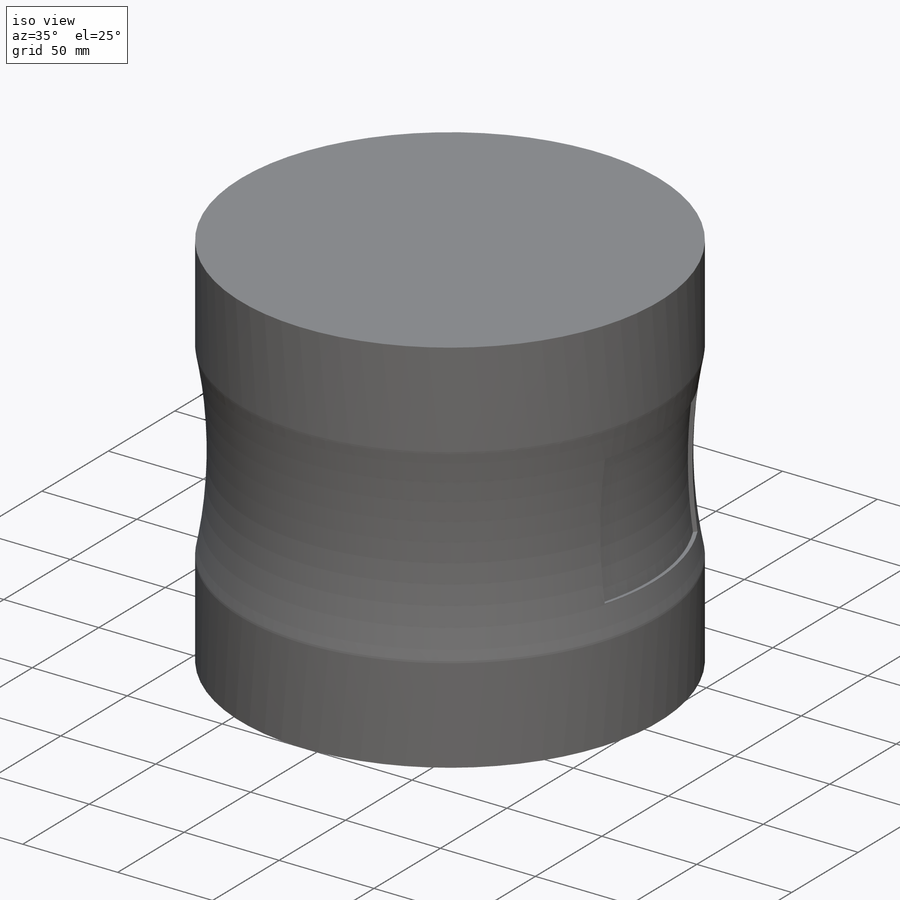
[diagram: iso view]
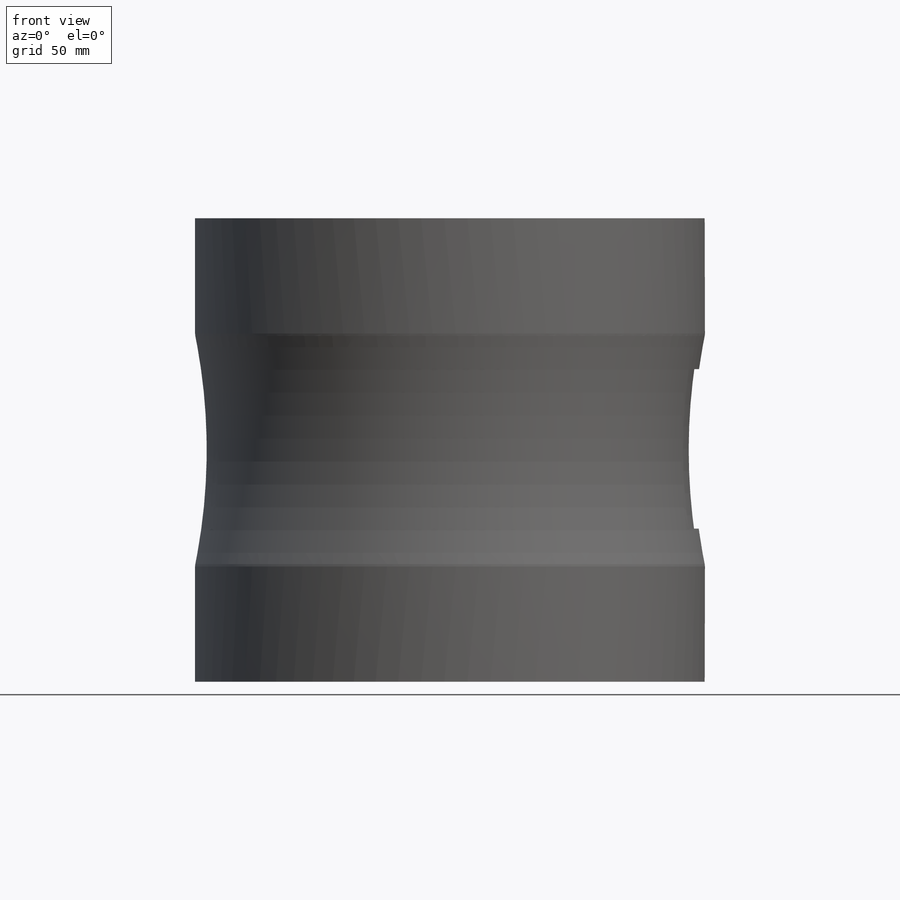
[diagram: front view]
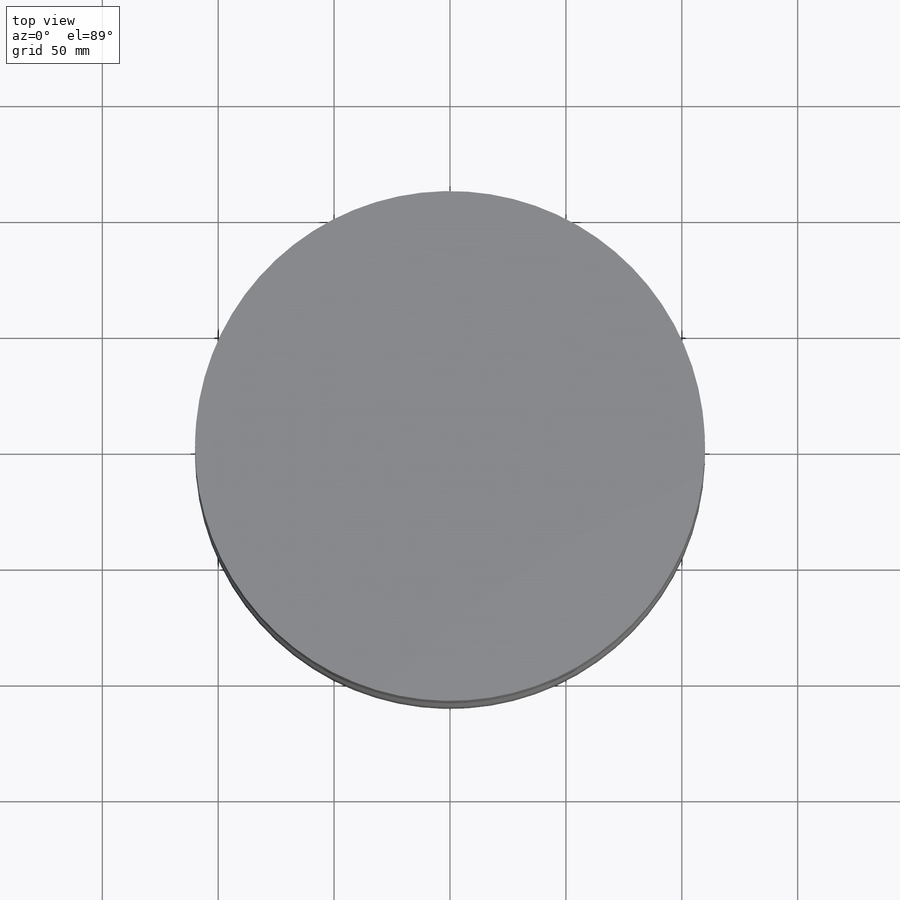
[diagram: top view]
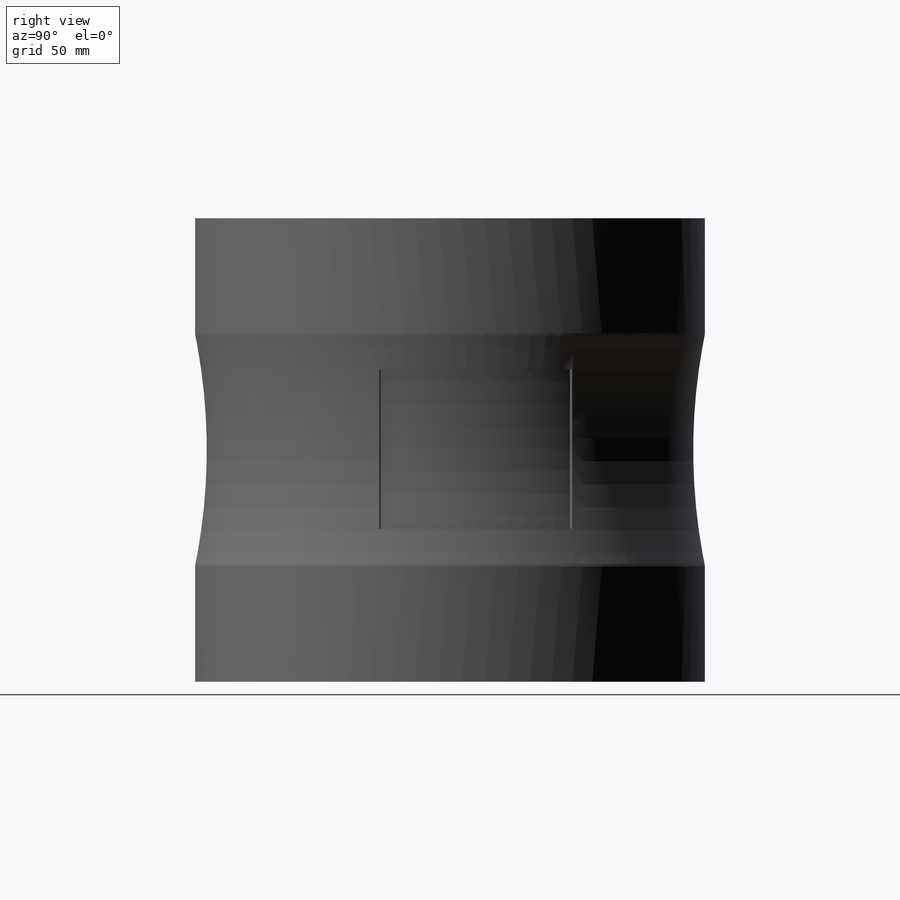
[diagram: right view]
SOLIDWORKS PART (.sldprt)
format: sldprt  version: not decoded by parser v0  size: 309,760 bytes
history: native  units: mm
features: sketch x6, plane x4, revolve x2, material x1, boolean_combine x1 (+10 scaffold rows collapsed)
feature tree (24):
  scaffold x10  (default folders/planes/origin — collapsed)
  material  "Material <nicht festgelegt>"
  plane  "Ebene vorne"
  plane  "Ebene oben"
  plane  "Ebene rechts"
  sketch  "Skizze1"  dims[c1.D1=5.0mm c1.D5=250.0mm c1.D2=5.0mm c1.D3=200.0mm c1.D4=~42.386971mm c2.D5=~42.386971mm c2.D4=110.0mm]
  revolve  "Rotation1"  Angle=360deg
  plane  "Ebene1"  Offset=130mm
  sketch  "Ausgangsskizze"
  sketch  "Skizze2"  dims[c1.D1=~210.519315mm c1.D2=~109.527296mm c2.D1=~6283.185307mm]
  sketch  "Skizze3"  dims[D1=~238.869916mm]
  revolve  "Zyl liegend"  [1 undecoded]
  sketch  "SkizzeRückprojektion1"  dims[D1=0.0mm Umwickeln2=0.0deg]
  sketch  "SkizzeRückprojektion2"  dims[c1.D1=0.0mm c2.D1=0.0mm c3.D1=2.0mm]
  boolean_combine  "Kombinieren2"
decode coverage: 6 of 9 modeling features carry decoded parameters
note: ~ marks probable driven/reference dimensions
note: 1 parameter value undecoded
note: suppression state not decoded; provenance and decode notes live in map.json
